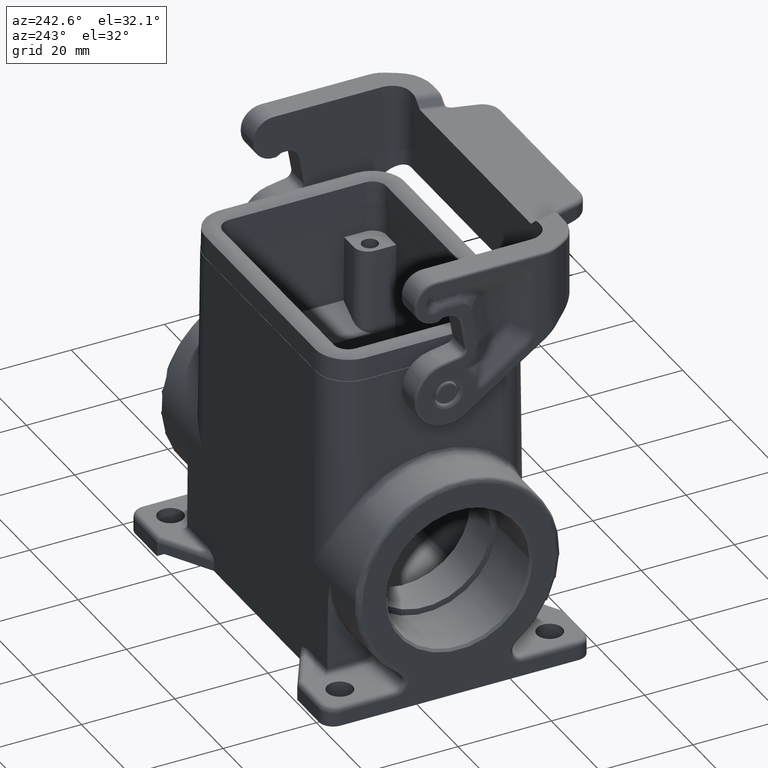
[diagram: clean part render]
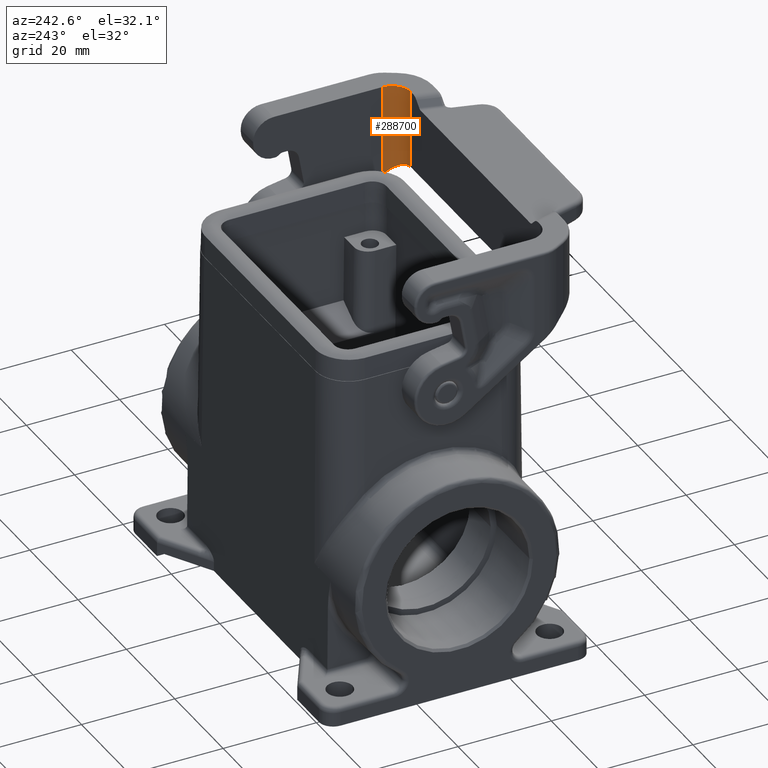
[diagram: same view with one face highlighted and labeled with its STEP entity id]
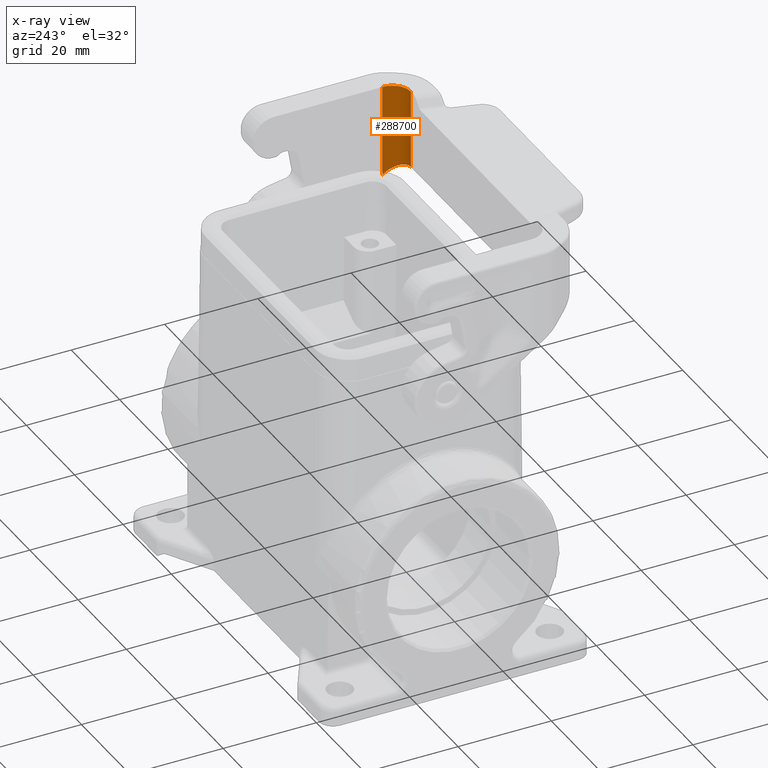
[diagram: x-ray of the same camera — body ghosted, the highlighted face saturated]
A machine part, auxiliary view. The second image highlights one B-rep face of the part: STEP entity #288700.
The next image is the same camera in x-ray: the body ghosted, the highlighted face saturated — about 0% of this face is hidden behind the body in this view.
In plain terms, the highlighted cylindrical surface (edge-blend (fillet) strip) has radius 4 mm, axis along (0, -0, 1).
Its self-contained STEP definition (entity closure, byte-faithful):
#114420=CARTESIAN_POINT('',(3.94085599999998,12.5006529998346,
0.516115703365983));
#114430=VERTEX_POINT('',#114420);
#115450=CARTESIAN_POINT('',(3.94085599999986,12.5006529998346,
-19.2000000000749));
#115460=VERTEX_POINT('',#115450);
#115490=CARTESIAN_POINT('',(3.94085599999919,12.5006529998346,
-127.73222618257));
#115500=DIRECTION('',(-6.22580633402255E-15,-2.66800027741805E-16,-1.));
#115510=VECTOR('',#115500,1.);
#115520=LINE('',#115490,#115510);
#115530=EDGE_CURVE('',#114430,#115460,#115520,.T.);
#288170=CARTESIAN_POINT('',(7.94085599999998,12.5006529998346,
0.516115703365983));
#288180=DIRECTION('',(-7.59862983036857E-16,0.573576436350952,
-0.819152044289058));
#288190=DIRECTION('',(9.76916529858945E-15,0.819152044289058,
0.573576436350952));
#288200=AXIS2_PLACEMENT_3D('',#288170,#288180,#288190);
#288210=ELLIPSE('',#288200,4.88309835504543,4.);
#288220=CARTESIAN_POINT('',(7.94085599999997,8.50065299983459,
-2.28471444947216));
#288230=VERTEX_POINT('',#288220);
#288240=EDGE_CURVE('',#288230,#114430,#288210,.T.);
#288460=CARTESIAN_POINT('',(7.94085599999919,12.5006529998346,
-127.73222618257));
#288470=DIRECTION('',(-6.22580633402255E-15,-2.66800027741805E-16,-1.));
#288480=DIRECTION('',(-1.,-3.11143255782573E-16,6.22580633402255E-15));
#288490=AXIS2_PLACEMENT_3D('',#288460,#288470,#288480);
#288500=CYLINDRICAL_SURFACE('',#288490,4.);
#288510=CARTESIAN_POINT('',(7.94085599999986,12.5006529998346,
-19.2000000000749));
#288520=DIRECTION('',(-6.22580633402255E-15,-2.66800027741805E-16,-1.));
#288530=DIRECTION('',(-1.,-3.11143255782573E-16,6.22580633402255E-15));
#288540=AXIS2_PLACEMENT_3D('',#288510,#288520,#288530);
#288550=CIRCLE('',#288540,4.);
#288560=CARTESIAN_POINT('',(7.94085599999987,8.50065299983459,
-19.2000000000749));
#288570=VERTEX_POINT('',#288560);
#288580=EDGE_CURVE('',#288570,#115460,#288550,.T.);
#288590=ORIENTED_EDGE('',*,*,#288580,.T.);
#288600=CARTESIAN_POINT('',(7.94085599999919,8.50065299983459,
-127.73222618257));
#288610=DIRECTION('',(-6.22580633402255E-15,-2.66800027741805E-16,-1.));
#288620=VECTOR('',#288610,1.);
#288630=LINE('',#288600,#288620);
#288640=EDGE_CURVE('',#288230,#288570,#288630,.T.);
#288650=ORIENTED_EDGE('',*,*,#288640,.T.);
#288660=ORIENTED_EDGE('',*,*,#288240,.F.);
#288670=ORIENTED_EDGE('',*,*,#115530,.F.);
#288680=EDGE_LOOP('',(#288670,#288660,#288650,#288590));
#288690=FACE_OUTER_BOUND('',#288680,.T.);
#288700=ADVANCED_FACE('',(#288690),#288500,.F.);